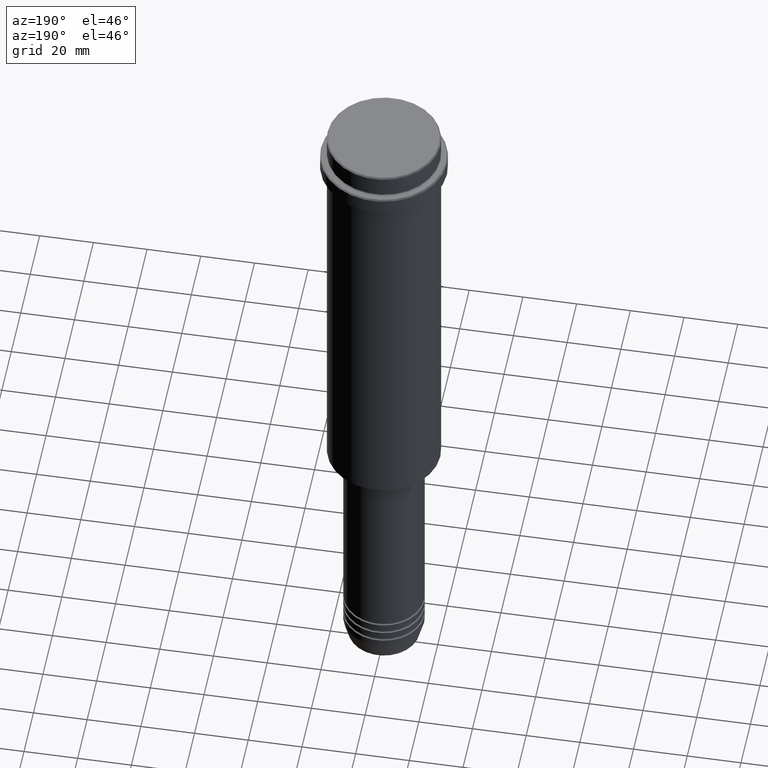
[diagram: clean part render]
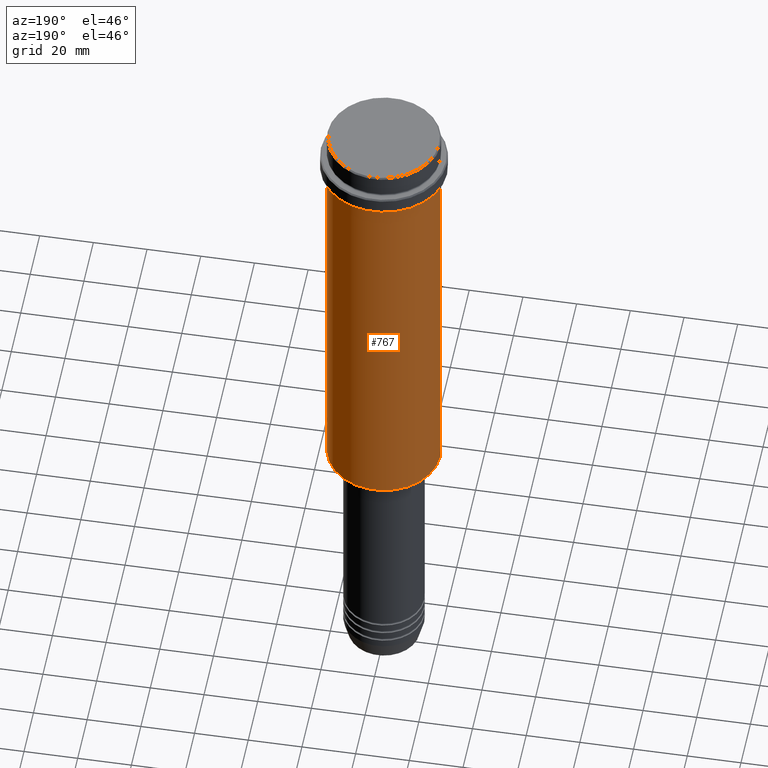
[diagram: same view with one face highlighted and labeled with its STEP entity id]
A machine part, auxiliary view. The second image highlights one B-rep face of the part: STEP entity #767.
In plain terms, the highlighted cylindrical surface (partial cylindrical patch) has radius 21 mm, axis along (-0, -0, 1).
Its self-contained STEP definition (entity closure, byte-faithful):
#92 = CARTESIAN_POINT ( 'NONE',  ( 0.000000000000000000, 0.000000000000000000, -164.5000000000000284 ) ) ;
#96 = DIRECTION ( 'NONE',  ( 1.000000000000000000, 0.000000000000000000, 0.000000000000000000 ) ) ;
#137 = CARTESIAN_POINT ( 'NONE',  ( 20.99999999999999645, 0.000000000000000000, -16.00000000000000355 ) ) ;
#165 = EDGE_CURVE ( 'NONE', #828, #1287, #242, .T. ) ;
#227 = DIRECTION ( 'NONE',  ( -0.000000000000000000, -0.000000000000000000, 1.000000000000000000 ) ) ;
#242 = CIRCLE ( 'NONE', #614, 20.99999999999999645 ) ;
#306 = LINE ( 'NONE', #730, #568 ) ;
#343 = DIRECTION ( 'NONE',  ( 1.000000000000000000, 0.000000000000000000, 0.000000000000000000 ) ) ;
#347 = CYLINDRICAL_SURFACE ( 'NONE', #933, 20.99999999999999645 ) ;
#362 = CARTESIAN_POINT ( 'NONE',  ( 20.99999999999999645, 0.000000000000000000, 0.000000000000000000 ) ) ;
#533 = DIRECTION ( 'NONE',  ( -1.000000000000000000, 0.000000000000000000, 0.000000000000000000 ) ) ;
#537 = DIRECTION ( 'NONE',  ( -0.000000000000000000, -0.000000000000000000, 1.000000000000000000 ) ) ;
#555 = ORIENTED_EDGE ( 'NONE', *, *, #557, .F. ) ;
#557 = EDGE_CURVE ( 'NONE', #753, #1183, #666, .T. ) ;
#568 = VECTOR ( 'NONE', #968, 1000.000000000000000 ) ;
#581 = DIRECTION ( 'NONE',  ( -0.000000000000000000, -0.000000000000000000, 1.000000000000000000 ) ) ;
#598 = ORIENTED_EDGE ( 'NONE', *, *, #1323, .F. ) ;
#609 = LINE ( 'NONE', #362, #1062 ) ;
#614 = AXIS2_PLACEMENT_3D ( 'NONE', #92, #1268, #533 ) ;
#666 = CIRCLE ( 'NONE', #1246, 20.99999999999999645 ) ;
#716 = ORIENTED_EDGE ( 'NONE', *, *, #1013, .T. ) ;
#730 = CARTESIAN_POINT ( 'NONE',  ( -20.99999999999999645, 2.571758278209441267E-15, 0.000000000000000000 ) ) ;
#753 = VERTEX_POINT ( 'NONE', #137 ) ;
#761 = EDGE_LOOP ( 'NONE', ( #1116, #716, #555, #598 ) ) ;
#767 = ADVANCED_FACE ( 'NONE', ( #1327 ), #347, .T. ) ;
#787 = CARTESIAN_POINT ( 'NONE',  ( -20.99999999999999645, 2.571758278209441267E-15, -16.00000000000000355 ) ) ;
#804 = CARTESIAN_POINT ( 'NONE',  ( 20.99999999999999645, 0.000000000000000000, -164.5000000000000284 ) ) ;
#828 = VERTEX_POINT ( 'NONE', #804 ) ;
#918 = CARTESIAN_POINT ( 'NONE',  ( -20.99999999999999645, 2.571758278209441267E-15, -164.5000000000000284 ) ) ;
#933 = AXIS2_PLACEMENT_3D ( 'NONE', #1332, #227, #343 ) ;
#968 = DIRECTION ( 'NONE',  ( -0.000000000000000000, -0.000000000000000000, 1.000000000000000000 ) ) ;
#1013 = EDGE_CURVE ( 'NONE', #1287, #1183, #306, .T. ) ;
#1062 = VECTOR ( 'NONE', #581, 1000.000000000000000 ) ;
#1116 = ORIENTED_EDGE ( 'NONE', *, *, #165, .T. ) ;
#1183 = VERTEX_POINT ( 'NONE', #787 ) ;
#1246 = AXIS2_PLACEMENT_3D ( 'NONE', #1397, #537, #96 ) ;
#1268 = DIRECTION ( 'NONE',  ( -0.000000000000000000, -0.000000000000000000, 1.000000000000000000 ) ) ;
#1287 = VERTEX_POINT ( 'NONE', #918 ) ;
#1323 = EDGE_CURVE ( 'NONE', #828, #753, #609, .T. ) ;
#1327 = FACE_OUTER_BOUND ( 'NONE', #761, .T. ) ;
#1332 = CARTESIAN_POINT ( 'NONE',  ( 0.000000000000000000, 0.000000000000000000, 0.000000000000000000 ) ) ;
#1397 = CARTESIAN_POINT ( 'NONE',  ( 0.000000000000000000, 0.000000000000000000, -16.00000000000000355 ) ) ;